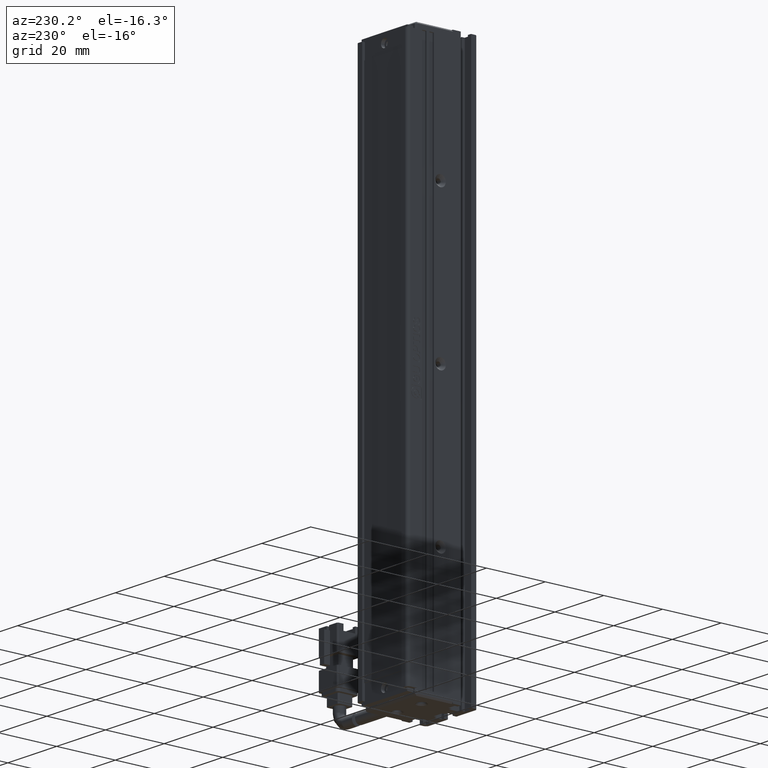
[diagram: clean part render]
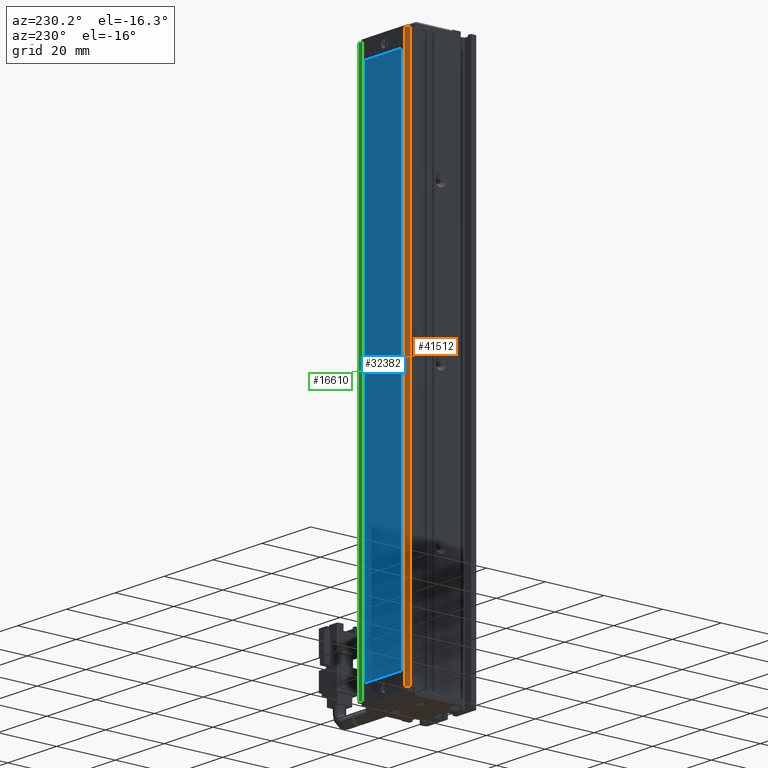
[diagram: same view with three faces highlighted in distinct colors, each labeled with its STEP entity id]
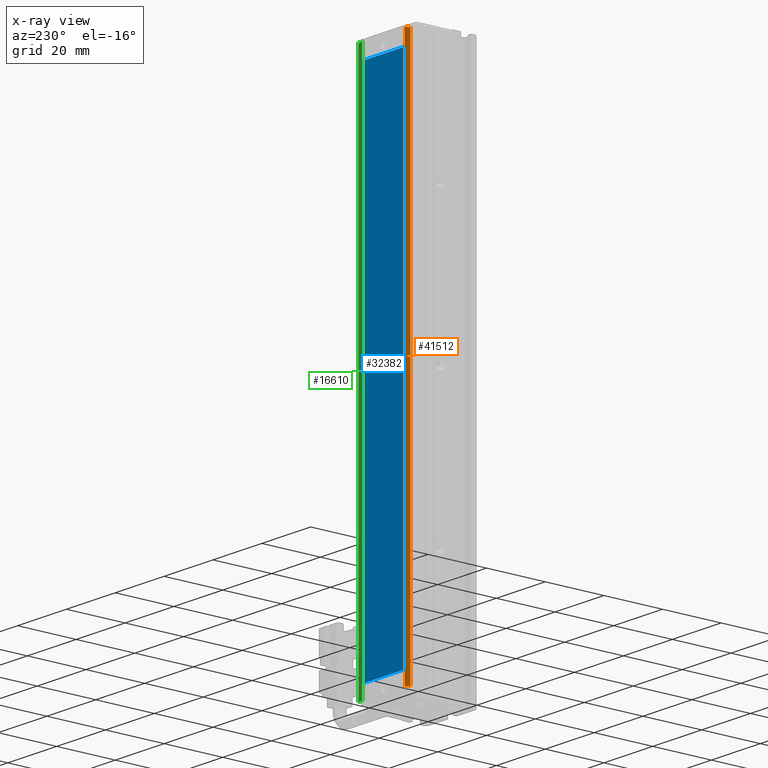
[diagram: x-ray of the same camera — body ghosted, the three highlighted faces saturated]
A machine part, auxiliary view with three faces highlighted in distinct colors.
The next image is the same camera in x-ray (body ghosted, the three faces saturated) — at least one of them is partly hidden behind the body in this view.
Their STEP definitions:

[orange] entity #41512 — the highlighted cylindrical surface (edge-blend (fillet) strip) has radius 1 mm, axis along (-0, -0, -1).
#2970 = ORIENTED_EDGE ( 'NONE', *, *, #22248, .T. ) ;
#4401 = DIRECTION ( 'NONE',  ( -1.000000000000000000, 0.0000000000000000000, 0.0000000000000000000 ) ) ;
#4416 = CARTESIAN_POINT ( 'NONE',  ( 30.42537974683542500, 33.99073232304837000, -25.00000000000000700 ) ) ;
#4434 = EDGE_CURVE ( 'NONE', #18869, #34245, #29867, .T. ) ;
#4895 = CARTESIAN_POINT ( 'NONE',  ( 30.42537974683542500, 33.99073232304837000, -23.00000000000000700 ) ) ;
#5046 = DIRECTION ( 'NONE',  ( -1.000000000000000000, 0.0000000000000000000, 0.0000000000000000000 ) ) ;
#5641 = DIRECTION ( 'NONE',  ( -1.000000000000000000, 0.0000000000000000000, 0.0000000000000000000 ) ) ;
#7789 = CIRCLE ( 'NONE', #28458, 1.000000000000000900 ) ;
#11571 = VERTEX_POINT ( 'NONE', #42894 ) ;
#12308 = CARTESIAN_POINT ( 'NONE',  ( 31.42537974683542100, 33.99073232304837000, -205.0000000000000300 ) ) ;
#13949 = CYLINDRICAL_SURFACE ( 'NONE', #15201, 1.000000000000000900 ) ;
#15201 = AXIS2_PLACEMENT_3D ( 'NONE', #19257, #34663, #5641 ) ;
#16385 = CARTESIAN_POINT ( 'NONE',  ( 31.42537974683542100, 33.99073232304837000, -25.00000000000000700 ) ) ;
#16398 = VECTOR ( 'NONE', #27633, 1000.000000000000000 ) ;
#17272 = AXIS2_PLACEMENT_3D ( 'NONE', #16385, #42169, #5046 ) ;
#17295 = ORIENTED_EDGE ( 'NONE', *, *, #32955, .T. ) ;
#18869 = VERTEX_POINT ( 'NONE', #4416 ) ;
#19257 = CARTESIAN_POINT ( 'NONE',  ( 31.42537974683542100, 33.99073232304837000, -23.00000000000000700 ) ) ;
#21264 = CARTESIAN_POINT ( 'NONE',  ( 31.42537974683542100, 34.99073232304837000, -23.00000000000000700 ) ) ;
#22248 = EDGE_CURVE ( 'NONE', #34959, #11571, #30375, .T. ) ;
#23458 = CARTESIAN_POINT ( 'NONE',  ( 31.42537974683542100, 34.99073232304837700, -25.00000000000000700 ) ) ;
#24315 = ORIENTED_EDGE ( 'NONE', *, *, #35454, .T. ) ;
#25809 = ORIENTED_EDGE ( 'NONE', *, *, #4434, .F. ) ;
#27633 = DIRECTION ( 'NONE',  ( -0.0000000000000000000, -0.0000000000000000000, -1.000000000000000000 ) ) ;
#28257 = DIRECTION ( 'NONE',  ( -0.0000000000000000000, -0.0000000000000000000, -1.000000000000000000 ) ) ;
#28458 = AXIS2_PLACEMENT_3D ( 'NONE', #12308, #31282, #4401 ) ;
#29185 = VECTOR ( 'NONE', #28257, 1000.000000000000000 ) ;
#29867 = LINE ( 'NONE', #4895, #16398 ) ;
#30375 = LINE ( 'NONE', #21264, #29185 ) ;
#31282 = DIRECTION ( 'NONE',  ( 0.0000000000000000000, 0.0000000000000000000, 1.000000000000000000 ) ) ;
#31691 = EDGE_LOOP ( 'NONE', ( #17295, #25809, #24315, #2970 ) ) ;
#32955 = EDGE_CURVE ( 'NONE', #11571, #34245, #7789, .T. ) ;
#34245 = VERTEX_POINT ( 'NONE', #36504 ) ;
#34469 = FACE_OUTER_BOUND ( 'NONE', #31691, .T. ) ;
#34663 = DIRECTION ( 'NONE',  ( -0.0000000000000000000, -0.0000000000000000000, -1.000000000000000000 ) ) ;
#34959 = VERTEX_POINT ( 'NONE', #23458 ) ;
#35454 = EDGE_CURVE ( 'NONE', #18869, #34959, #45885, .T. ) ;
#36504 = CARTESIAN_POINT ( 'NONE',  ( 30.42537974683542500, 33.99073232304837000, -205.0000000000000300 ) ) ;
#41512 = ADVANCED_FACE ( 'NONE', ( #34469 ), #13949, .T. ) ;
#42169 = DIRECTION ( 'NONE',  ( -0.0000000000000000000, -0.0000000000000000000, -1.000000000000000000 ) ) ;
#42894 = CARTESIAN_POINT ( 'NONE',  ( 31.42537974683542100, 34.99073232304837700, -205.0000000000000300 ) ) ;
#45885 = CIRCLE ( 'NONE', #17272, 1.000000000000000900 ) ;

[blue] entity #32382 — the highlighted planar face has unit normal (0, -1, 0).
#50 = VECTOR ( 'NONE', #47860, 1000.000000000000000 ) ;
#576 = VERTEX_POINT ( 'NONE', #46562 ) ;
#853 = DIRECTION ( 'NONE',  ( -4.081702296416017000E-017, -0.0000000000000000000, 1.000000000000000000 ) ) ;
#997 = CARTESIAN_POINT ( 'NONE',  ( 0.0000000000000000000, 34.29073232304836700, 0.0000000000000000000 ) ) ;
#2195 = ORIENTED_EDGE ( 'NONE', *, *, #18902, .T. ) ;
#3826 = VECTOR ( 'NONE', #30311, 1000.000000000000000 ) ;
#3904 = EDGE_CURVE ( 'NONE', #31657, #576, #25231, .T. ) ;
#4548 = AXIS2_PLACEMENT_3D ( 'NONE', #997, #38302, #15469 ) ;
#5689 = VECTOR ( 'NONE', #853, 1000.000000000000000 ) ;
#7485 = VECTOR ( 'NONE', #20335, 1000.000000000000000 ) ;
#10680 = CARTESIAN_POINT ( 'NONE',  ( 48.92537974683541800, 34.29073232304836700, -200.0000000000000000 ) ) ;
#10794 = CARTESIAN_POINT ( 'NONE',  ( 48.92537974683541800, 34.29073232304836700, -30.00000000000001400 ) ) ;
#13937 = CARTESIAN_POINT ( 'NONE',  ( 32.92537974683541800, 34.29073232304836700, -30.00000000000001400 ) ) ;
#15469 = DIRECTION ( 'NONE',  ( 0.0000000000000000000, -0.0000000000000000000, -1.000000000000000000 ) ) ;
#15753 = CARTESIAN_POINT ( 'NONE',  ( 48.92537974683541800, 34.29073232304836700, -114.9999999999999700 ) ) ;
#16899 = ORIENTED_EDGE ( 'NONE', *, *, #47041, .T. ) ;
#18902 = EDGE_CURVE ( 'NONE', #576, #46259, #30329, .T. ) ;
#20335 = DIRECTION ( 'NONE',  ( -0.0000000000000000000, -0.0000000000000000000, -1.000000000000000000 ) ) ;
#21059 = CARTESIAN_POINT ( 'NONE',  ( 32.92537974683542500, 34.29073232304836700, -200.0000000000000000 ) ) ;
#22853 = ORIENTED_EDGE ( 'NONE', *, *, #35307, .T. ) ;
#23879 = VERTEX_POINT ( 'NONE', #21059 ) ;
#25231 = LINE ( 'NONE', #10794, #50 ) ;
#26819 = ORIENTED_EDGE ( 'NONE', *, *, #3904, .T. ) ;
#30208 = PLANE ( 'NONE',  #4548 ) ;
#30311 = DIRECTION ( 'NONE',  ( -1.000000000000000000, -0.0000000000000000000, -0.0000000000000000000 ) ) ;
#30329 = LINE ( 'NONE', #15753, #7485 ) ;
#30484 = CARTESIAN_POINT ( 'NONE',  ( 32.92537974683542500, 34.29073232304836700, -200.0000000000000000 ) ) ;
#30873 = CARTESIAN_POINT ( 'NONE',  ( 32.92537974683541800, 34.29073232304836700, -30.00000000000001400 ) ) ;
#31657 = VERTEX_POINT ( 'NONE', #13937 ) ;
#32382 = ADVANCED_FACE ( 'NONE', ( #38258 ), #30208, .F. ) ;
#33759 = LINE ( 'NONE', #30484, #3826 ) ;
#35307 = EDGE_CURVE ( 'NONE', #46259, #23879, #33759, .T. ) ;
#37620 = EDGE_LOOP ( 'NONE', ( #16899, #26819, #2195, #22853 ) ) ;
#38258 = FACE_OUTER_BOUND ( 'NONE', #37620, .T. ) ;
#38302 = DIRECTION ( 'NONE',  ( 0.0000000000000000000, -1.000000000000000000, 0.0000000000000000000 ) ) ;
#40791 = LINE ( 'NONE', #30873, #5689 ) ;
#46259 = VERTEX_POINT ( 'NONE', #10680 ) ;
#46562 = CARTESIAN_POINT ( 'NONE',  ( 48.92537974683541800, 34.29073232304836700, -30.00000000000001400 ) ) ;
#47041 = EDGE_CURVE ( 'NONE', #23879, #31657, #40791, .T. ) ;
#47860 = DIRECTION ( 'NONE',  ( 1.000000000000000000, -0.0000000000000000000, -0.0000000000000000000 ) ) ;

[green] entity #16610 — the highlighted planar face has unit normal (0, -1, 0).
#510 = VECTOR ( 'NONE', #1950, 1000.000000000000000 ) ;
#601 = VERTEX_POINT ( 'NONE', #5678 ) ;
#1950 = DIRECTION ( 'NONE',  ( -0.0000000000000000000, -0.0000000000000000000, -1.000000000000000000 ) ) ;
#2068 = CARTESIAN_POINT ( 'NONE',  ( 40.92537974683536100, 34.99073232304835600, -205.0000000000000300 ) ) ;
#4685 = CARTESIAN_POINT ( 'NONE',  ( 50.42537974683541800, 34.99073232304837000, -23.00000000000000700 ) ) ;
#5678 = CARTESIAN_POINT ( 'NONE',  ( 48.92537974683541800, 34.99073232304837700, -25.00000000000000700 ) ) ;
#11782 = DIRECTION ( 'NONE',  ( 0.0000000000000000000, 0.0000000000000000000, 1.000000000000000000 ) ) ;
#12303 = VECTOR ( 'NONE', #11782, 1000.000000000000000 ) ;
#13284 = CARTESIAN_POINT ( 'NONE',  ( 48.92537974683541800, 34.99073232304837700, -23.00000000000000700 ) ) ;
#15225 = EDGE_CURVE ( 'NONE', #19455, #46089, #24102, .T. ) ;
#16610 = ADVANCED_FACE ( 'NONE', ( #41388 ), #35016, .F. ) ;
#18281 = EDGE_CURVE ( 'NONE', #46089, #22628, #22249, .T. ) ;
#19455 = VERTEX_POINT ( 'NONE', #19948 ) ;
#19948 = CARTESIAN_POINT ( 'NONE',  ( 48.92537974683541800, 34.99073232304837700, -205.0000000000000300 ) ) ;
#20296 = DIRECTION ( 'NONE',  ( -1.000000000000000000, -2.312964634635740700E-015, -0.0000000000000000000 ) ) ;
#22199 = ORIENTED_EDGE ( 'NONE', *, *, #28766, .F. ) ;
#22249 = LINE ( 'NONE', #4685, #12303 ) ;
#22534 = ORIENTED_EDGE ( 'NONE', *, *, #28275, .F. ) ;
#22628 = VERTEX_POINT ( 'NONE', #27037 ) ;
#22809 = LINE ( 'NONE', #13284, #510 ) ;
#23719 = CARTESIAN_POINT ( 'NONE',  ( 40.92537974683536100, 34.99073232304835600, -25.00000000000000700 ) ) ;
#24102 = LINE ( 'NONE', #2068, #31158 ) ;
#24869 = CARTESIAN_POINT ( 'NONE',  ( 50.42537974683541800, 34.99073232304837700, -205.0000000000000300 ) ) ;
#25562 = EDGE_LOOP ( 'NONE', ( #22534, #30858, #37560, #22199 ) ) ;
#27037 = CARTESIAN_POINT ( 'NONE',  ( 50.42537974683541800, 34.99073232304837700, -25.00000000000000700 ) ) ;
#27597 = DIRECTION ( 'NONE',  ( 1.000000000000000000, 2.312964634635740700E-015, 0.0000000000000000000 ) ) ;
#28275 = EDGE_CURVE ( 'NONE', #22628, #601, #40356, .T. ) ;
#28766 = EDGE_CURVE ( 'NONE', #601, #19455, #22809, .T. ) ;
#30858 = ORIENTED_EDGE ( 'NONE', *, *, #18281, .F. ) ;
#31158 = VECTOR ( 'NONE', #35831, 1000.000000000000000 ) ;
#35016 = PLANE ( 'NONE',  #45191 ) ;
#35831 = DIRECTION ( 'NONE',  ( 1.000000000000000000, 2.312964634635740700E-015, 0.0000000000000000000 ) ) ;
#37560 = ORIENTED_EDGE ( 'NONE', *, *, #15225, .F. ) ;
#39354 = DIRECTION ( 'NONE',  ( 2.312964634635740700E-015, -1.000000000000000000, 0.0000000000000000000 ) ) ;
#40356 = LINE ( 'NONE', #23719, #46786 ) ;
#41388 = FACE_OUTER_BOUND ( 'NONE', #25562, .T. ) ;
#45191 = AXIS2_PLACEMENT_3D ( 'NONE', #45393, #39354, #27597 ) ;
#45393 = CARTESIAN_POINT ( 'NONE',  ( 40.92537974683536100, 34.99073232304835600, -23.00000000000000700 ) ) ;
#46089 = VERTEX_POINT ( 'NONE', #24869 ) ;
#46786 = VECTOR ( 'NONE', #20296, 1000.000000000000000 ) ;